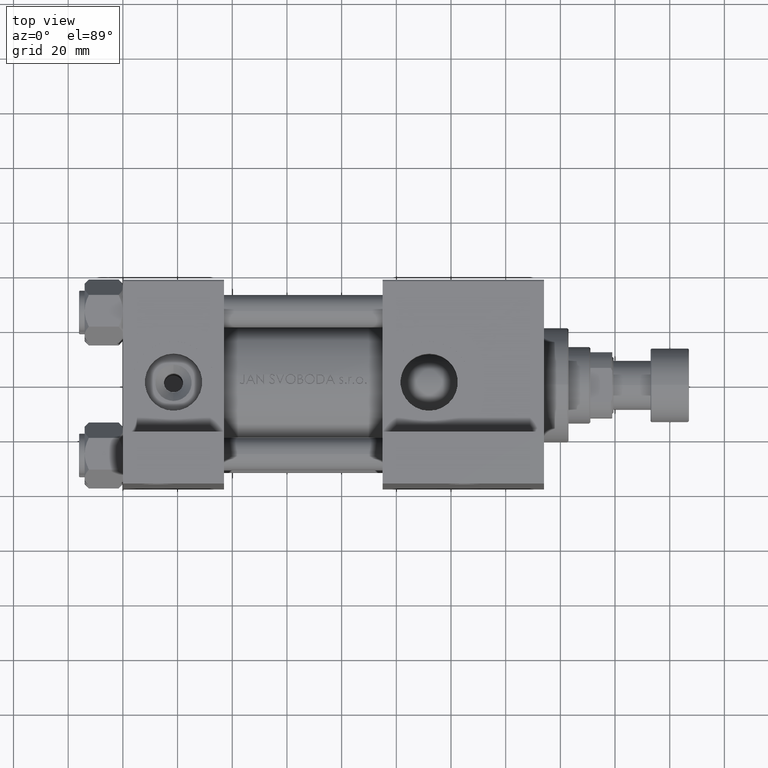
[diagram: clean part render]
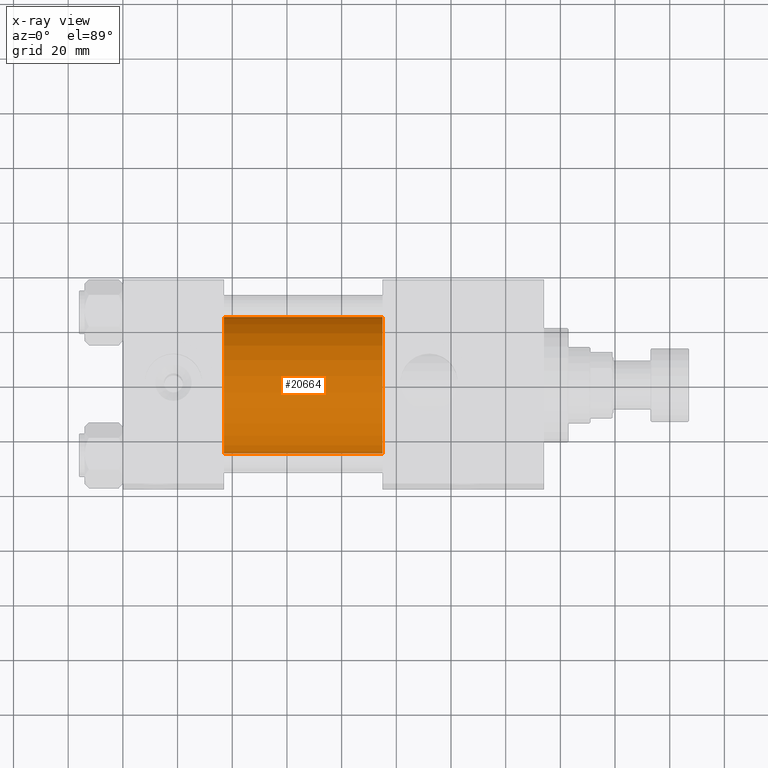
[diagram: x-ray — body ghosted, one internal face saturated and labeled with its STEP entity id]
A machine part, top view, then the same camera in x-ray: the body is ghosted and one INTERNAL B-rep face — a face not visible from any outside direction — is saturated and labeled: STEP entity #20664.
In plain terms, the highlighted cylindrical surface (partial cylindrical patch) has radius 25 mm, axis along (-1, -0, 0).
Its self-contained STEP definition (entity closure, byte-faithful):
#440 = CARTESIAN_POINT ( 'NONE',  ( 95.00000000000000000, 0.000000000000000000, -0.5000000000000004441 ) ) ;
#1198 = DIRECTION ( 'NONE',  ( -1.000000000000000000, -0.000000000000000000, -0.000000000000000000 ) ) ;
#1217 = CARTESIAN_POINT ( 'NONE',  ( 37.00000000000000000, 3.061616997868382254E-15, -25.50000000000000355 ) ) ;
#1973 = DIRECTION ( 'NONE',  ( 0.000000000000000000, 0.000000000000000000, -1.000000000000000000 ) ) ;
#2470 = CARTESIAN_POINT ( 'NONE',  ( 37.00000000000000000, 0.000000000000000000, -0.5000000000000004441 ) ) ;
#2904 = AXIS2_PLACEMENT_3D ( 'NONE', #2470, #25731, #1973 ) ;
#3669 = VERTEX_POINT ( 'NONE', #1217 ) ;
#6352 = VERTEX_POINT ( 'NONE', #39003 ) ;
#6360 = AXIS2_PLACEMENT_3D ( 'NONE', #37872, #22713, #45740 ) ;
#6951 = AXIS2_PLACEMENT_3D ( 'NONE', #440, #1198, #16637 ) ;
#7872 = ORIENTED_EDGE ( 'NONE', *, *, #36589, .F. ) ;
#9042 = CYLINDRICAL_SURFACE ( 'NONE', #6951, 25.00000000000000000 ) ;
#9209 = LINE ( 'NONE', #24633, #33022 ) ;
#10160 = CARTESIAN_POINT ( 'NONE',  ( 95.00000000000000000, 0.000000000000000000, 24.50000000000000000 ) ) ;
#11199 = CIRCLE ( 'NONE', #6360, 25.00000000000000000 ) ;
#16637 = DIRECTION ( 'NONE',  ( 0.000000000000000000, 0.000000000000000000, 1.000000000000000000 ) ) ;
#18097 = ORIENTED_EDGE ( 'NONE', *, *, #44069, .T. ) ;
#20664 = ADVANCED_FACE ( 'NONE', ( #23464 ), #9042, .F. ) ;
#21027 = VECTOR ( 'NONE', #41613, 1000.000000000000000 ) ;
#22713 = DIRECTION ( 'NONE',  ( 1.000000000000000000, 0.000000000000000000, 0.000000000000000000 ) ) ;
#23464 = FACE_OUTER_BOUND ( 'NONE', #43419, .T. ) ;
#24633 = CARTESIAN_POINT ( 'NONE',  ( 95.00000000000000000, 3.061616997868382254E-15, -25.50000000000000355 ) ) ;
#25731 = DIRECTION ( 'NONE',  ( 1.000000000000000000, 0.000000000000000000, 0.000000000000000000 ) ) ;
#26192 = LINE ( 'NONE', #46608, #21027 ) ;
#28868 = ORIENTED_EDGE ( 'NONE', *, *, #49689, .F. ) ;
#33022 = VECTOR ( 'NONE', #35761, 1000.000000000000000 ) ;
#33625 = CARTESIAN_POINT ( 'NONE',  ( 37.00000000000000000, 0.000000000000000000, 24.50000000000000000 ) ) ;
#35761 = DIRECTION ( 'NONE',  ( -1.000000000000000000, -0.000000000000000000, -0.000000000000000000 ) ) ;
#36589 = EDGE_CURVE ( 'NONE', #42713, #3669, #39220, .T. ) ;
#37717 = ORIENTED_EDGE ( 'NONE', *, *, #47281, .T. ) ;
#37872 = CARTESIAN_POINT ( 'NONE',  ( 95.00000000000000000, 0.000000000000000000, -0.5000000000000004441 ) ) ;
#39003 = CARTESIAN_POINT ( 'NONE',  ( 95.00000000000000000, 3.061616997868382254E-15, -25.50000000000000355 ) ) ;
#39220 = CIRCLE ( 'NONE', #2904, 25.00000000000000000 ) ;
#41613 = DIRECTION ( 'NONE',  ( -1.000000000000000000, -0.000000000000000000, -0.000000000000000000 ) ) ;
#42713 = VERTEX_POINT ( 'NONE', #33625 ) ;
#43419 = EDGE_LOOP ( 'NONE', ( #37717, #18097, #7872, #28868 ) ) ;
#44069 = EDGE_CURVE ( 'NONE', #6352, #3669, #9209, .T. ) ;
#45740 = DIRECTION ( 'NONE',  ( 0.000000000000000000, 0.000000000000000000, -1.000000000000000000 ) ) ;
#46213 = VERTEX_POINT ( 'NONE', #10160 ) ;
#46608 = CARTESIAN_POINT ( 'NONE',  ( 95.00000000000000000, 0.000000000000000000, 24.50000000000000000 ) ) ;
#47281 = EDGE_CURVE ( 'NONE', #46213, #6352, #11199, .T. ) ;
#49689 = EDGE_CURVE ( 'NONE', #46213, #42713, #26192, .T. ) ;